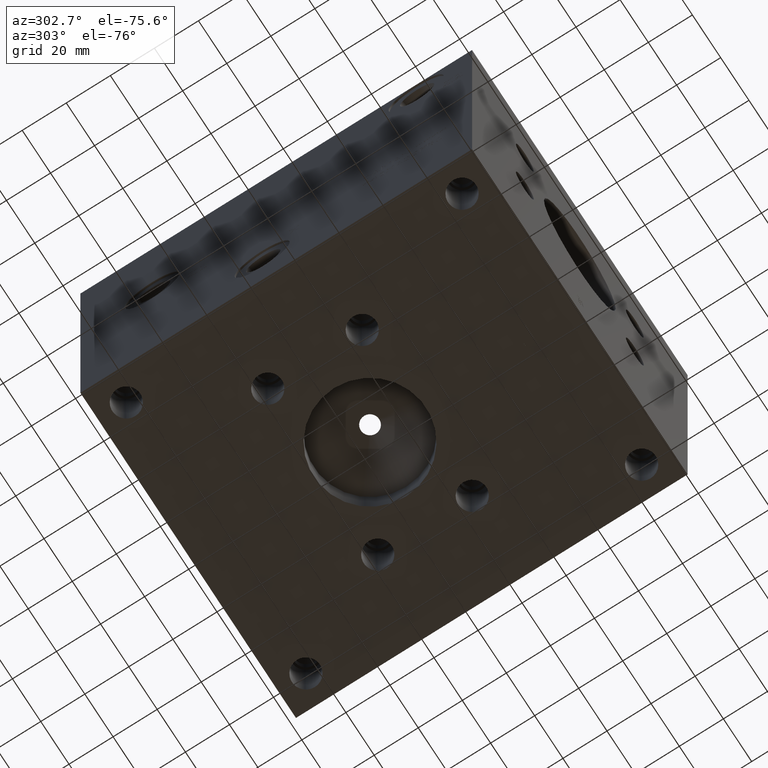
[diagram: clean part render]
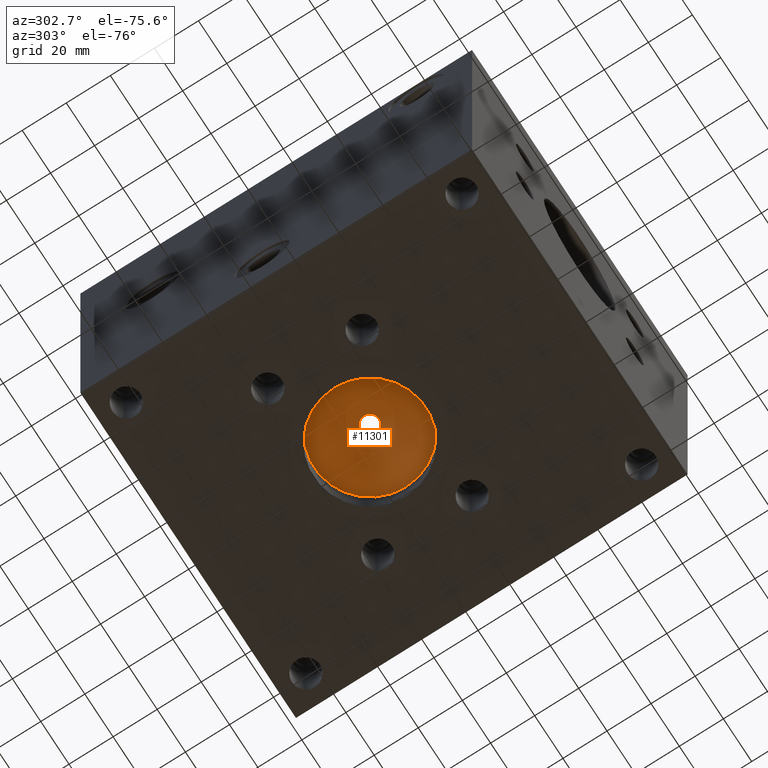
[diagram: same view with one face highlighted and labeled with its STEP entity id]
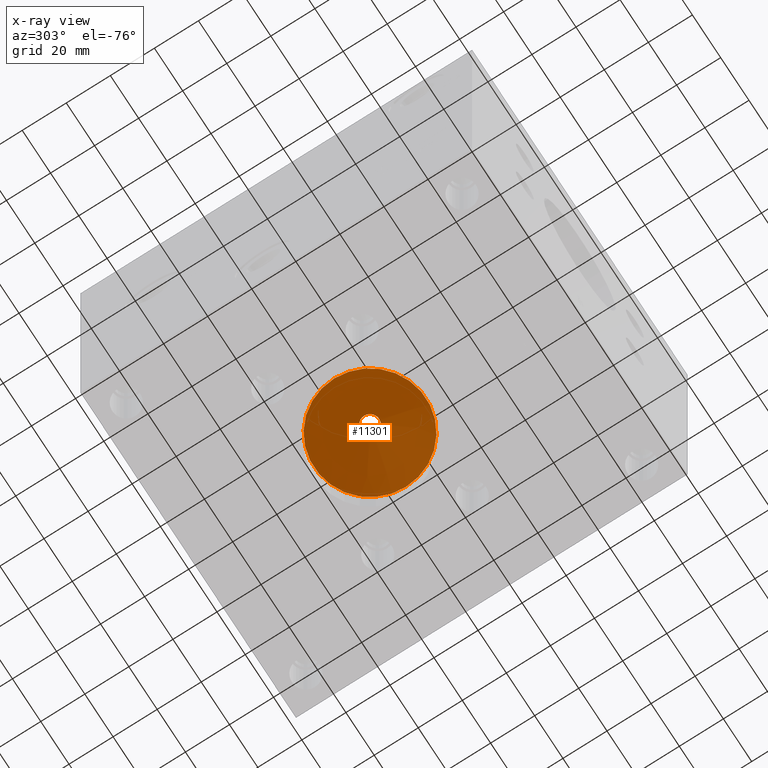
[diagram: x-ray of the same camera — body ghosted, the highlighted face saturated]
A machine part, auxiliary view. The second image highlights one B-rep face of the part: STEP entity #11301.
The next image is the same camera in x-ray: the body ghosted, the highlighted face saturated — about 0% of this face is hidden behind the body in this view.
In plain terms, the highlighted conical surface has half-angle 60 deg.
Its self-contained STEP definition (entity closure, byte-faithful):
#90=CONICAL_SURFACE('',#11837,12.7,1.0471975511966);
#170=CIRCLE('',#11838,25.4);
#171=CIRCLE('',#11839,4.16891926755929);
#172=CIRCLE('',#11840,25.4);
#1229=FACE_OUTER_BOUND('',#1865,.T.);
#1865=EDGE_LOOP('',(#9294,#9295,#9296,#9297,#9298));
#3054=LINE('',#18578,#4157);
#4157=VECTOR('',#13949,12.7);
#5097=VERTEX_POINT('',#18574);
#5098=VERTEX_POINT('',#18575);
#5099=VERTEX_POINT('',#18577);
#6577=EDGE_CURVE('',#5097,#5098,#170,.T.);
#6578=EDGE_CURVE('',#5098,#5099,#3054,.T.);
#6579=EDGE_CURVE('',#5099,#5099,#171,.T.);
#6580=EDGE_CURVE('',#5098,#5097,#172,.T.);
#9294=ORIENTED_EDGE('',*,*,#6577,.T.);
#9295=ORIENTED_EDGE('',*,*,#6578,.T.);
#9296=ORIENTED_EDGE('',*,*,#6579,.F.);
#9297=ORIENTED_EDGE('',*,*,#6578,.F.);
#9298=ORIENTED_EDGE('',*,*,#6580,.T.);
#11301=ADVANCED_FACE('',(#1229),#90,.F.);
#11837=AXIS2_PLACEMENT_3D('',#18573,#13945,#13946);
#11838=AXIS2_PLACEMENT_3D('',#18576,#13947,#13948);
#11839=AXIS2_PLACEMENT_3D('',#18579,#13950,#13951);
#11840=AXIS2_PLACEMENT_3D('',#18580,#13952,#13953);
#13945=DIRECTION('center_axis',(0.,0.,-1.));
#13946=DIRECTION('ref_axis',(1.,0.,0.));
#13947=DIRECTION('center_axis',(0.,0.,-1.));
#13948=DIRECTION('ref_axis',(1.,0.,0.));
#13949=DIRECTION('',(0.866025403784439,-1.06057523872491E-16,0.5));
#13950=DIRECTION('center_axis',(0.,0.,-1.));
#13951=DIRECTION('ref_axis',(1.,0.,0.));
#13952=DIRECTION('center_axis',(0.,0.,-1.));
#13953=DIRECTION('ref_axis',(1.,0.,0.));
#18573=CARTESIAN_POINT('Origin',(76.2,95.25,21.9970484187083));
#18574=CARTESIAN_POINT('',(101.6,95.25,14.6647));
#18575=CARTESIAN_POINT('',(50.8,95.25,14.6647));
#18576=CARTESIAN_POINT('Origin',(76.2,95.25,14.6647));
#18577=CARTESIAN_POINT('',(72.0310807324407,95.25,26.9224701760613));
#18578=CARTESIAN_POINT('',(63.5,95.25,21.9970484187083));
#18579=CARTESIAN_POINT('Origin',(76.2,95.25,26.9224701760613));
#18580=CARTESIAN_POINT('Origin',(76.2,95.25,14.6647));